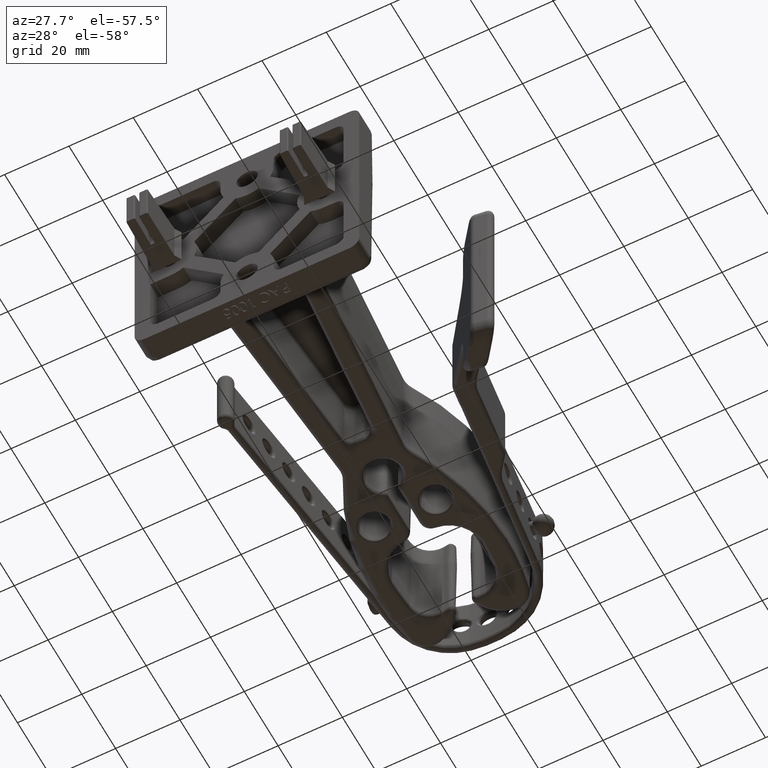
[diagram: clean part render]
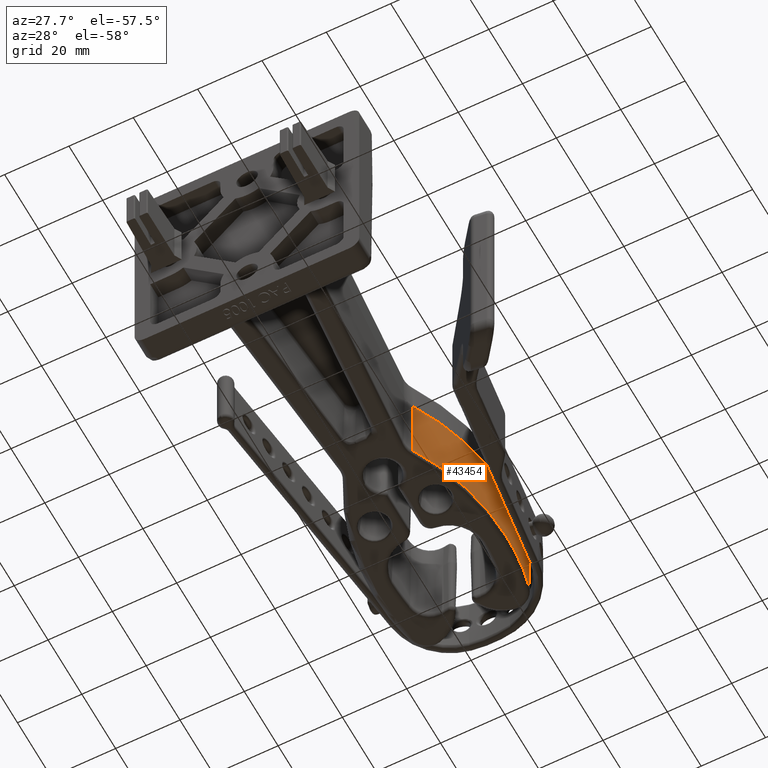
[diagram: same view with one face highlighted and labeled with its STEP entity id]
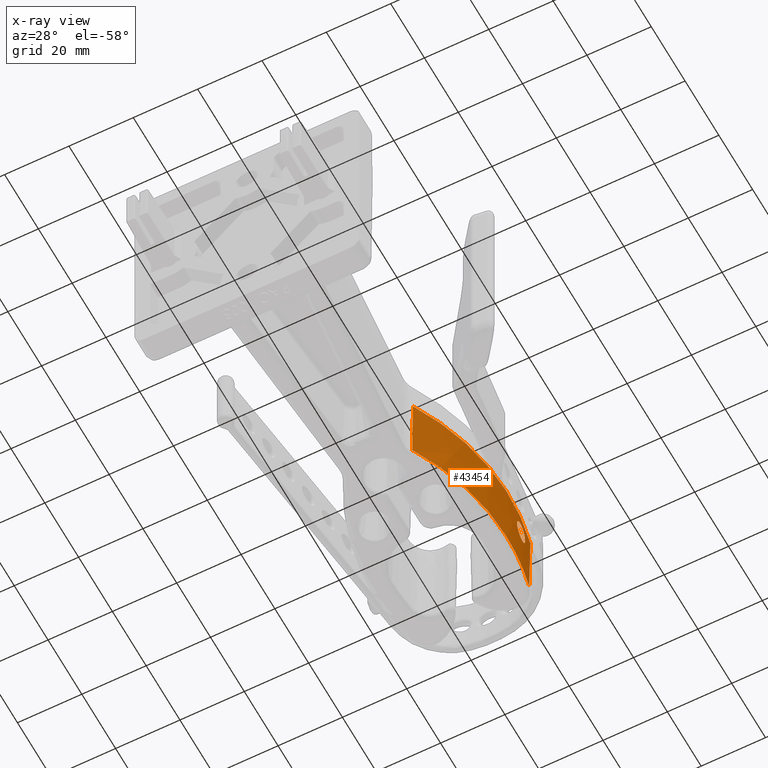
[diagram: x-ray of the same camera — body ghosted, the highlighted face saturated]
A machine part, auxiliary view. The second image highlights one B-rep face of the part: STEP entity #43454.
The next image is the same camera in x-ray: the body ghosted, the highlighted face saturated — about 0% of this face is hidden behind the body in this view.
In plain terms, the highlighted conical surface has half-angle 1 deg.
Its self-contained STEP definition (entity closure, byte-faithful):
#148 = ORIENTED_EDGE ( 'NONE', *, *, #43745, .T. ) ;
#149 = ORIENTED_EDGE ( 'NONE', *, *, #43694, .T. ) ;
#150 = ORIENTED_EDGE ( 'NONE', *, *, #43775, .T. ) ;
#151 = ORIENTED_EDGE ( 'NONE', *, *, #43774, .F. ) ;
#152 = ORIENTED_EDGE ( 'NONE', *, *, #43769, .T. ) ;
#153 = ORIENTED_EDGE ( 'NONE', *, *, #43776, .T. ) ;
#154 = ORIENTED_EDGE ( 'NONE', *, *, #43688, .T. ) ;
#1375 = B_SPLINE_CURVE_WITH_KNOTS ( 'NONE', 3,
 ( #33071, #33091, #33093, #33095, #33097, #33099, #33101, #33103, #33105, #33107, #33108, #33109, #33110, #33112, #33114, #33116, #33117, #33119, #33121, #33123, #33125, #33127, #33129, #33131, #33133, #33135, #33137, #33139, #33141, #33143, #33145, #33147 ),
 .UNSPECIFIED., .F., .F.,
 ( 4, 2, 2, 2, 2, 2, 2, 2, 2, 2, 2, 2, 2, 2, 2, 4 ),
 ( 0.01229733774110403800, 0.01291750387271261100, 0.01353767000432118600, 0.01415783613592975900, 0.01477800226753833200, 0.01539816839914690700, 0.01601833453075548000, 0.01663850066236405300, 0.01725866679397263000, 0.01787883292558120300, 0.01849899905718977600, 0.01911916518879834900, 0.01973933132040692200, 0.02097966358362410000, 0.02159982971523268000, 0.02221999584684126000 ),
 .UNSPECIFIED. ) ;
#1379 = B_SPLINE_CURVE_WITH_KNOTS ( 'NONE', 3,
 ( #33837, #33846, #33848, #33850, #33852, #33854, #33856, #33858, #33860, #33862, #33864, #33866, #33868, #33870, #33872, #33874, #33876, #33878, #33880, #33882, #33884, #33886, #33888, #33890, #33892, #33894, #33896, #33898, #33900, #33902, #33904, #33906, #33908, #33910 ),
 .UNSPECIFIED., .F., .F.,
 ( 4, 2, 2, 2, 2, 2, 2, 2, 2, 2, 2, 2, 2, 2, 2, 2, 4 ),
 ( 0.002365353469266524200, 0.002986102486256369000, 0.003606851503246213300, 0.004227600520236058000, 0.004848349537225902700, 0.005469098554215747400, 0.006089847571205592200, 0.006710596588195436000, 0.007331345605185281600, 0.007952094622175125500, 0.008572843639164971100, 0.009193592656154814900, 0.009814341673144658800, 0.01043509069013450400, 0.01105583970712434800, 0.01167658872411419400, 0.01229733774110403800 ),
 .UNSPECIFIED. ) ;
#10517 = CARTESIAN_POINT ( 'NONE',  ( 0.7818917378812705300, 4.494254814397165500, 1.138829808571688700E-017 ) ) ;
#10518 = CARTESIAN_POINT ( 'NONE',  ( 0.8134546301834160200, 4.246255250225103400, -9.275729833376524000E-016 ) ) ;
#10544 = CARTESIAN_POINT ( 'NONE',  ( 0.8130883750752322400, 4.000000000000000000, -0.6138089304827962800 ) ) ;
#10545 = CARTESIAN_POINT ( 'NONE',  ( 0.4242626689737525300, 2.542895474982906900, -0.6138089304827959400 ) ) ;
#10563 = CARTESIAN_POINT ( 'NONE',  ( 0.4373359276518632400, 2.535383404977515000, 0.2500000000000000000 ) ) ;
#10592 = CARTESIAN_POINT ( 'NONE',  ( 0.7323792261975680100, 4.682329888979603000, -0.6138089304827960600 ) ) ;
#10593 = CARTESIAN_POINT ( 'NONE',  ( 0.7470409729408424800, 4.685847625562519000, 0.2500000000000000000 ) ) ;
#23096 = VERTEX_POINT ( 'NONE', #10517 ) ;
#23097 = VERTEX_POINT ( 'NONE', #10518 ) ;
#23123 = VERTEX_POINT ( 'NONE', #10544 ) ;
#23124 = VERTEX_POINT ( 'NONE', #10545 ) ;
#23142 = VERTEX_POINT ( 'NONE', #10563 ) ;
#23171 = VERTEX_POINT ( 'NONE', #10592 ) ;
#23172 = VERTEX_POINT ( 'NONE', #10593 ) ;
#27725 = DIRECTION ( 'NONE',  ( -1.000000000000000000, 0.0000000000000000000, 0.0000000000000000000 ) ) ;
#27726 = DIRECTION ( 'NONE',  ( 0.0000000000000000000, 0.0000000000000000000, 1.000000000000000000 ) ) ;
#27727 = CARTESIAN_POINT ( 'NONE',  ( -2.111536965869974300, 4.000000000000000000, 0.2500000000000000000 ) ) ;
#28903 = CONICAL_SURFACE ( 'NONE', #29817, 2.939703181912357400, 0.01745329251994333400 ) ;
#28906 = FACE_OUTER_BOUND ( 'NONE', #48443, .T. ) ;
#28910 = FACE_BOUND ( 'NONE', #48440, .T. ) ;
#29283 = CIRCLE ( 'NONE', #29951, 2.924625340945207000 ) ;
#29323 = LINE ( 'NONE', #33589, #29338 ) ;
#29338 = VECTOR ( 'NONE', #33591, 39.37007874015748100 ) ;
#29375 = CIRCLE ( 'NONE', #29997, 2.939703181912358200 ) ;
#29378 = LINE ( 'NONE', #33831, #29379 ) ;
#29379 = VECTOR ( 'NONE', #33834, 39.37007874015748100 ) ;
#29383 = CIRCLE ( 'NONE', #30000, 2.924625340945207000 ) ;
#29817 = AXIS2_PLACEMENT_3D ( 'NONE', #27727, #27726, #27725 ) ;
#29951 = AXIS2_PLACEMENT_3D ( 'NONE', #33182, #33185, #33187 ) ;
#29997 = AXIS2_PLACEMENT_3D ( 'NONE', #33784, #33801, #33803 ) ;
#30000 = AXIS2_PLACEMENT_3D ( 'NONE', #33835, #33839, #33841 ) ;
#33071 = CARTESIAN_POINT ( 'NONE',  ( 0.7818917378812705300, 4.494254814397165500, 1.138829808571688700E-017 ) ) ;
#33091 = CARTESIAN_POINT ( 'NONE',  ( 0.7817507013572515500, 4.494236864685709600, -0.008137763741850418900 ) ) ;
#33093 = CARTESIAN_POINT ( 'NONE',  ( 0.7817440140476870100, 4.493425295103040900, -0.01636302904739908600 ) ) ;
#33095 = CARTESIAN_POINT ( 'NONE',  ( 0.7820026273431299700, 4.490227309386658500, -0.03245894092073665200 ) ) ;
#33097 = CARTESIAN_POINT ( 'NONE',  ( 0.7822636492889689700, 4.487874171062379100, -0.04024939098793280100 ) ) ;
#33099 = CARTESIAN_POINT ( 'NONE',  ( 0.7830335416302614000, 4.481685003347345200, -0.05532438156567761500 ) ) ;
#33101 = CARTESIAN_POINT ( 'NONE',  ( 0.7835497877544483900, 4.477797459192617100, -0.06266526775108775800 ) ) ;
#33103 = CARTESIAN_POINT ( 'NONE',  ( 0.7847783319634186200, 4.468812800623757300, -0.07623518101696574700 ) ) ;
#33105 = CARTESIAN_POINT ( 'NONE',  ( 0.7854918628648752700, 4.463702250193138700, -0.08253214959404810100 ) ) ;
#33107 = CARTESIAN_POINT ( 'NONE',  ( 0.7871007830982341700, 4.452224018463356400, -0.09413591256532698200 ) ) ;
#33108 = CARTESIAN_POINT ( 'NONE',  ( 0.7879916765969717800, 4.445887551827222100, -0.09938433499826782000 ) ) ;
#33109 = CARTESIAN_POINT ( 'NONE',  ( 0.7898614801393889500, 4.432483993172333200, -0.1084333795712383200 ) ) ;
#33110 = CARTESIAN_POINT ( 'NONE',  ( 0.7908516963627502100, 4.425336430240562000, -0.1123052861943181100 ) ) ;
#33112 = CARTESIAN_POINT ( 'NONE',  ( 0.7929113772283806800, 4.410248872107049000, -0.1186206530464438400 ) ) ;
#33114 = CARTESIAN_POINT ( 'NONE',  ( 0.7939526109579950800, 4.402515261464340100, -0.1209830824404273400 ) ) ;
#33116 = CARTESIAN_POINT ( 'NONE',  ( 0.7960461903410279700, 4.386680354147862300, -0.1241736620444531700 ) ) ;
#33117 = CARTESIAN_POINT ( 'NONE',  ( 0.7971102593702933400, 4.378486123058565700, -0.1249964689480080200 ) ) ;
#33119 = CARTESIAN_POINT ( 'NONE',  ( 0.7991765502031192800, 4.362252029429223300, -0.1250035079263533700 ) ) ;
#33121 = CARTESIAN_POINT ( 'NONE',  ( 0.8001790991832048400, 4.354214234515508200, -0.1242112108625173900 ) ) ;
#33123 = CARTESIAN_POINT ( 'NONE',  ( 0.8021270387794110500, 4.338297077474848600, -0.1210404842546282800 ) ) ;
#33125 = CARTESIAN_POINT ( 'NONE',  ( 0.8030746347190336200, 4.330395393915876100, -0.1186319065793272100 ) ) ;
#33127 = CARTESIAN_POINT ( 'NONE',  ( 0.8048405510404407200, 4.315438701697113200, -0.1124065127414137500 ) ) ;
#33129 = CARTESIAN_POINT ( 'NONE',  ( 0.8056700573238641000, 4.308293158187767700, -0.1085793669458413000 ) ) ;
#33131 = CARTESIAN_POINT ( 'NONE',  ( 0.8072357585761516000, 4.294689340702384500, -0.09945389380118893600 ) ) ;
#33133 = CARTESIAN_POINT ( 'NONE',  ( 0.8079586804506820900, 4.288346835496995800, -0.09422306605536920300 ) ) ;
#33135 = CARTESIAN_POINT ( 'NONE',  ( 0.8099433221595618800, 4.270999490180979100, -0.07677079764935090800 ) ) ;
#33137 = CARTESIAN_POINT ( 'NONE',  ( 0.8109990144694382300, 4.261881676018888700, -0.06303832624486045700 ) ) ;
#33139 = CARTESIAN_POINT ( 'NONE',  ( 0.8122180363746839300, 4.252512485259782000, -0.04022530493995360400 ) ) ;
#33141 = CARTESIAN_POINT ( 'NONE',  ( 0.8125541732650810600, 4.250177180538616800, -0.03242525948718470000 ) ) ;
#33143 = CARTESIAN_POINT ( 'NONE',  ( 0.8131011515081820700, 4.247035898279718500, -0.01644565818597635800 ) ) ;
#33145 = CARTESIAN_POINT ( 'NONE',  ( 0.8133129706795700900, 4.246237221227055200, -0.008173709484783723100 ) ) ;
#33147 = CARTESIAN_POINT ( 'NONE',  ( 0.8134546301834160200, 4.246255250225103400, -9.275729833376524000E-016 ) ) ;
#33182 = CARTESIAN_POINT ( 'NONE',  ( -2.111536965869974300, 4.000000000000000000, -0.6138089304827962800 ) ) ;
#33185 = DIRECTION ( 'NONE',  ( 0.0000000000000000000, 0.0000000000000000000, 1.000000000000000000 ) ) ;
#33187 = DIRECTION ( 'NONE',  ( 1.000000000000000000, 0.0000000000000000000, 0.0000000000000000000 ) ) ;
#33589 = CARTESIAN_POINT ( 'NONE',  ( 0.4373359276518632400, 2.535383404977515000, 0.2500000000000000000 ) ) ;
#33591 = DIRECTION ( 'NONE',  ( -0.01513212829391164300, 0.008695124136476439800, -0.9998476951563912700 ) ) ;
#33784 = CARTESIAN_POINT ( 'NONE',  ( -2.111536965869974300, 4.000000000000000000, 0.2500000000000000000 ) ) ;
#33801 = DIRECTION ( 'NONE',  ( -0.0000000000000000000, -0.0000000000000000000, -1.000000000000000000 ) ) ;
#33803 = DIRECTION ( 'NONE',  ( 1.000000000000000000, 0.0000000000000000000, 0.0000000000000000000 ) ) ;
#33831 = CARTESIAN_POINT ( 'NONE',  ( 0.7470409729408424800, 4.685847625562519000, 0.2500000000000000000 ) ) ;
#33834 = DIRECTION ( 'NONE',  ( -0.01697078274015556600, -0.004071734721046341200, -0.9998476951563912700 ) ) ;
#33835 = CARTESIAN_POINT ( 'NONE',  ( -2.111536965869974300, 4.000000000000000000, -0.6138089304827962800 ) ) ;
#33837 = CARTESIAN_POINT ( 'NONE',  ( 0.8134546301834160200, 4.246255250225103400, -9.275729833376524000E-016 ) ) ;
#33839 = DIRECTION ( 'NONE',  ( 0.0000000000000000000, 0.0000000000000000000, 1.000000000000000000 ) ) ;
#33841 = DIRECTION ( 'NONE',  ( 1.000000000000000000, 0.0000000000000000000, 0.0000000000000000000 ) ) ;
#33846 = CARTESIAN_POINT ( 'NONE',  ( 0.8135964228310244000, 4.246273296168390700, 0.008181391838790423900 ) ) ;
#33848 = CARTESIAN_POINT ( 'NONE',  ( 0.8136704225165815000, 4.247084677791283600, 0.01628698866018984300 ) ) ;
#33850 = CARTESIAN_POINT ( 'NONE',  ( 0.8136787063165897800, 4.250296366279916200, 0.03234641366747073600 ) ) ;
#33852 = CARTESIAN_POINT ( 'NONE',  ( 0.8136108263421342200, 4.252720498058030400, 0.04029847218621346300 ) ) ;
#33854 = CARTESIAN_POINT ( 'NONE',  ( 0.8133279889600539800, 4.258970325211342900, 0.05535548120845388400 ) ) ;
#33856 = CARTESIAN_POINT ( 'NONE',  ( 0.8131136544072219400, 4.262808852439635900, 0.06255347507762371000 ) ) ;
#33858 = CARTESIAN_POINT ( 'NONE',  ( 0.8125171030452850200, 4.271961831693667800, 0.07626548875003746900 ) ) ;
#33860 = CARTESIAN_POINT ( 'NONE',  ( 0.8121419846946060800, 4.277160706760721400, 0.08259638879617253700 ) ) ;
#33862 = CARTESIAN_POINT ( 'NONE',  ( 0.8112321654125384000, 4.288649191839396300, 0.09411616693247244800 ) ) ;
#33864 = CARTESIAN_POINT ( 'NONE',  ( 0.8106899918318568600, 4.295025025270593500, 0.09937305173064518700 ) ) ;
#33866 = CARTESIAN_POINT ( 'NONE',  ( 0.8094453138632211600, 4.308622117533524900, 0.1084911013294334200 ) ) ;
#33868 = CARTESIAN_POINT ( 'NONE',  ( 0.8087497132975118900, 4.315776359308495500, 0.1123296163003135300 ) ) ;
#33870 = CARTESIAN_POINT ( 'NONE',  ( 0.8071978010638101200, 4.330783963593074000, 0.1185871856173705000 ) ) ;
#33872 = CARTESIAN_POINT ( 'NONE',  ( 0.8063325579000967200, 4.338708580532768100, 0.1210071484766348100 ) ) ;
#33874 = CARTESIAN_POINT ( 'NONE',  ( 0.8044974913712703600, 4.354620509084343300, 0.1241920149416743800 ) ) ;
#33876 = CARTESIAN_POINT ( 'NONE',  ( 0.8035218918010480500, 4.362671129052285900, 0.1249967555334998100 ) ) ;
#33878 = CARTESIAN_POINT ( 'NONE',  ( 0.8014486223570760300, 4.378964533646972700, 0.1250032250729448700 ) ) ;
#33880 = CARTESIAN_POINT ( 'NONE',  ( 0.8003599780057996100, 4.387127964684578900, 0.1241871539691326600 ) ) ;
#33882 = CARTESIAN_POINT ( 'NONE',  ( 0.7981558079561317200, 4.402956374546466400, 0.1210081974773508100 ) ) ;
#33884 = CARTESIAN_POINT ( 'NONE',  ( 0.7970250557891328500, 4.410735248282687600, 0.1186331344186260700 ) ) ;
#33886 = CARTESIAN_POINT ( 'NONE',  ( 0.7947470925824058300, 4.425796168680173900, 0.1123229082956469500 ) ) ;
#33888 = CARTESIAN_POINT ( 'NONE',  ( 0.7936273477368960300, 4.432900281221216200, 0.1084703164739254200 ) ) ;
#33890 = CARTESIAN_POINT ( 'NONE',  ( 0.7914412372486889800, 4.446286323164073000, 0.09941585053955261100 ) ) ;
#33892 = CARTESIAN_POINT ( 'NONE',  ( 0.7903638238689568700, 4.452628627123004900, 0.09414353307871924100 ) ) ;
#33894 = CARTESIAN_POINT ( 'NONE',  ( 0.7883576444695318300, 4.464031812445858400, 0.08257005045047001400 ) ) ;
#33896 = CARTESIAN_POINT ( 'NONE',  ( 0.7874254595933114500, 4.469119525143114800, 0.07627638563018085400 ) ) ;
#33898 = CARTESIAN_POINT ( 'NONE',  ( 0.7857222441051710000, 4.478070032970623300, 0.06267465657411085100 ) ) ;
#33900 = CARTESIAN_POINT ( 'NONE',  ( 0.7849527260458154500, 4.481919843646955400, 0.05534222732457166200 ) ) ;
#33902 = CARTESIAN_POINT ( 'NONE',  ( 0.7836612098746402700, 4.488040118787313100, 0.04028268258508541100 ) ) ;
#33904 = CARTESIAN_POINT ( 'NONE',  ( 0.7831286868883146100, 4.490366863247650100, 0.03248154856067864100 ) ) ;
#33906 = CARTESIAN_POINT ( 'NONE',  ( 0.7823090307956032100, 4.493505489014697900, 0.01631787515723533100 ) ) ;
#33908 = CARTESIAN_POINT ( 'NONE',  ( 0.7820329069635246800, 4.494272780979303100, 0.008145412310967050200 ) ) ;
#33910 = CARTESIAN_POINT ( 'NONE',  ( 0.7818917378812705300, 4.494254814397165500, 1.138829808571688700E-017 ) ) ;
#43454 = ADVANCED_FACE ( 'NONE', ( #28906, #28910 ), #28903, .T. ) ;
#43688 = EDGE_CURVE ( 'NONE', #23096, #23097, #1375, .T. ) ;
#43694 = EDGE_CURVE ( 'NONE', #23124, #23123, #29283, .T. ) ;
#43745 = EDGE_CURVE ( 'NONE', #23142, #23124, #29323, .T. ) ;
#43769 = EDGE_CURVE ( 'NONE', #23172, #23142, #29375, .T. ) ;
#43774 = EDGE_CURVE ( 'NONE', #23172, #23171, #29378, .T. ) ;
#43775 = EDGE_CURVE ( 'NONE', #23123, #23171, #29383, .T. ) ;
#43776 = EDGE_CURVE ( 'NONE', #23097, #23096, #1379, .T. ) ;
#48440 = EDGE_LOOP ( 'NONE', ( #153, #154 ) ) ;
#48443 = EDGE_LOOP ( 'NONE', ( #148, #149, #150, #151, #152 ) ) ;